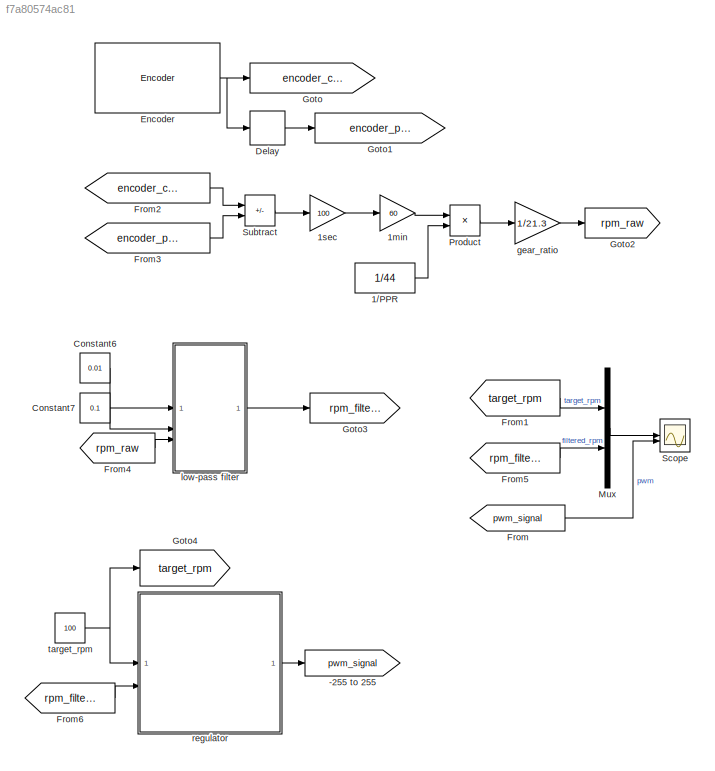
MODEL slx_f7a80574ac81
KIND model
CONFIG AbsTol = auto
CONFIG EnableMultiTasking = on
CONFIG FixedStep = 0.01
CONFIG MaxStep = auto
CONFIG MinStep = auto
CONFIG RelTol = 1e-3
CONFIG SampleTimeConstraint = Unconstrained
CONFIG SolverName = FixedStepDiscrete
CONFIG StartTime = 0.0
CONFIG StopTime = inf
BLOCK [Goto] -255 to 255
  GotoTag = pwm_signal
BLOCK [Constant] 1//PPR
  Value = 1/44
BLOCK [Gain] 1min
  Gain = 60
BLOCK [Gain] 1sec
  Gain = 100
BLOCK [Constant] Constant6
  Value = 0.01
BLOCK [Constant] Constant7
  Value = 0.1
BLOCK [Delay] Delay
  DelayLength = 1
  InputPortMap = u0
BLOCK [Reference] Encoder  REF=arduinosensorlib/Encoder
  SourceBlock = arduinosensorlib/Encoder
  SourceType = Arduino Rotary Encoder
BLOCK [From] From
  GotoTag = pwm_signal
BLOCK [From] From1
  GotoTag = target_rpm
BLOCK [From] From2
  GotoTag = encoder_current
BLOCK [From] From3
  GotoTag = encoder_previous
BLOCK [From] From4
  GotoTag = rpm_raw
BLOCK [From] From5
  GotoTag = rpm_filtered
BLOCK [From] From6
  GotoTag = rpm_filtered
BLOCK [Goto] Goto
  GotoTag = encoder_current
BLOCK [Goto] Goto1
  GotoTag = encoder_previous
BLOCK [Goto] Goto2
  GotoTag = rpm_raw
BLOCK [Goto] Goto3
  GotoTag = rpm_filtered
BLOCK [Goto] Goto4
  GotoTag = target_rpm
BLOCK [Mux] Mux
  DisplayOption = bar
  Inputs = 2
BLOCK [Product] Product
BLOCK [Scope] Scope
  Floating = off
  NumInputPorts = 2
  ScopeSpecificationString = Simulink.scopes.TimeScopeBlockCfg('CurrentConfiguration', extmgr.ConfigurationSet(extmgr.Configuration('Core','General UI',true),extmgr.Configuration('Core','Source UI',true),extmgr.Configuration('Sources','WiredSimulink',true),extmgr.Configuration('Visuals','Time Domain',true,'SerializedDisplays',{struct('MinYLimReal','-300','MaxYLimReal','300','YLabelReal','','MinYLimMag',' 0.00000','MaxYLimMag'...<+1962ch>
BLOCK [Sum] Subtract
  IconShape = rectangular
  Inputs = +-
BLOCK [Gain] gear_ratio
  Gain = 1/21.3
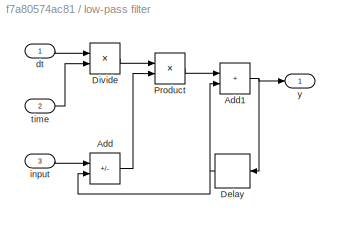
BLOCK [SubSystem] low-pass filter
BLOCK [Sum] low-pass filter/Add
  IconShape = rectangular
  Inputs = +-
BLOCK [Sum] low-pass filter/Add1
  IconShape = rectangular
BLOCK [Delay] low-pass filter/Delay
  DelayLength = 1
  InputPortMap = u0
BLOCK [Product] low-pass filter/Divide
  Inputs = */
BLOCK [Product] low-pass filter/Product
BLOCK [Inport] low-pass filter/dt
BLOCK [Inport] low-pass filter/input
  Port = 3
BLOCK [Inport] low-pass filter/time
  Port = 2
BLOCK [Outport] low-pass filter/y
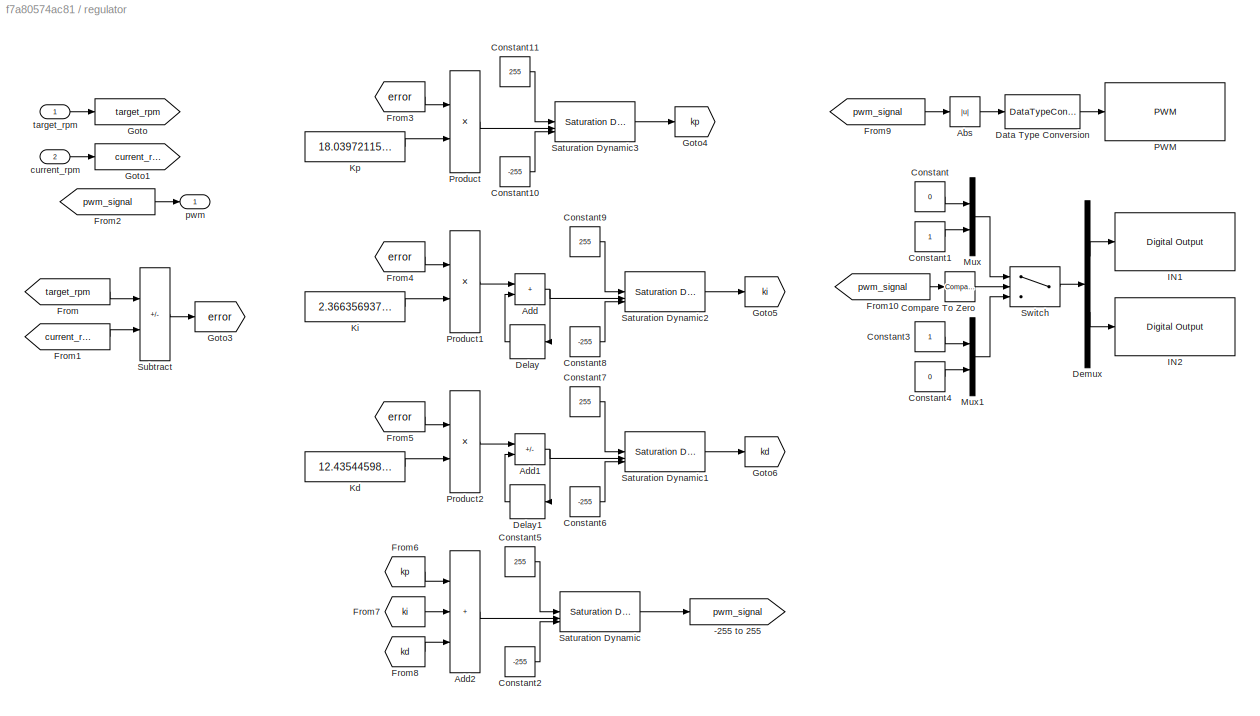
BLOCK [SubSystem] regulator
BLOCK [Goto] regulator/-255 to 255
  GotoTag = pwm_signal
BLOCK [Abs] regulator/Abs
  SaturateOnIntegerOverflow = off
BLOCK [Sum] regulator/Add
  IconShape = rectangular
BLOCK [Sum] regulator/Add1
  IconShape = rectangular
  Inputs = +-
BLOCK [Sum] regulator/Add2
  IconShape = rectangular
  Inputs = +++
BLOCK [Reference] regulator/Compare To Zero  REF=simulink/Logic and Bit
Operations/Compare
To Zero
  SourceBlock = simulink/Logic and Bit\nOperations/Compare\nTo Zero
  SourceType = Compare To Zero
BLOCK [Constant] regulator/Constant
  OutDataTypeStr = uint8
  OutMax = 1
  OutMin = 0
  Value = 0
BLOCK [Constant] regulator/Constant1
  OutDataTypeStr = uint8
  OutMax = 1
  OutMin = 0
BLOCK [Constant] regulator/Constant10
  Value = -255
BLOCK [Constant] regulator/Constant11
  Value = 255
BLOCK [Constant] regulator/Constant2
  Value = -255
BLOCK [Constant] regulator/Constant3
  OutDataTypeStr = uint8
  OutMax = 1
  OutMin = 0
BLOCK [Constant] regulator/Constant4
  OutDataTypeStr = uint8
  OutMax = 1
  OutMin = 0
  Value = 0
BLOCK [Constant] regulator/Constant5
  Value = 255
BLOCK [Constant] regulator/Constant6
  Value = -255
BLOCK [Constant] regulator/Constant7
  Value = 255
BLOCK [Constant] regulator/Constant8
  Value = -255
BLOCK [Constant] regulator/Constant9
  Value = 255
BLOCK [DataTypeConversion] regulator/Data Type Conversion
  OutDataTypeStr = uint8
  RndMeth = Floor
  SaturateOnIntegerOverflow = off
BLOCK [Delay] regulator/Delay
  DelayLength = 1
  InputPortMap = u0
  NameLocation = top
BLOCK [Delay] regulator/Delay1
  DelayLength = 1
  InputPortMap = u0
  NameLocation = top
BLOCK [Demux] regulator/Demux
  Outputs = 2
BLOCK [From] regulator/From
  GotoTag = target_rpm
BLOCK [From] regulator/From1
  GotoTag = current_rpm
BLOCK [From] regulator/From10
  GotoTag = pwm_signal
BLOCK [From] regulator/From2
  GotoTag = pwm_signal
BLOCK [From] regulator/From3
  GotoTag = error
BLOCK [From] regulator/From4
  GotoTag = error
BLOCK [From] regulator/From5
  GotoTag = error
BLOCK [From] regulator/From6
  GotoTag = kp
BLOCK [From] regulator/From7
  GotoTag = ki
BLOCK [From] regulator/From8
  GotoTag = kd
BLOCK [From] regulator/From9
  GotoTag = pwm_signal
BLOCK [Goto] regulator/Goto
  GotoTag = target_rpm
BLOCK [Goto] regulator/Goto1
  GotoTag = current_rpm
BLOCK [Goto] regulator/Goto3
  GotoTag = error
BLOCK [Goto] regulator/Goto4
  GotoTag = kp
BLOCK [Goto] regulator/Goto5
  GotoTag = ki
BLOCK [Goto] regulator/Goto6
  GotoTag = kd
BLOCK [Reference] regulator/IN1  REF=arduinolib/Digital Output
  SourceBlock = arduinolib/Digital Output
  SourceType = Arduino Digital Output
BLOCK [Reference] regulator/IN2  REF=arduinolib/Digital Output
  SourceBlock = arduinolib/Digital Output
  SourceType = Arduino Digital Output
BLOCK [Constant] regulator/Kd
  Value = 12.4354459869947
BLOCK [Constant] regulator/Ki
  Value = 2.36635693787993
BLOCK [Constant] regulator/Kp
  Value = 18.0397211502912
BLOCK [Mux] regulator/Mux
  DisplayOption = bar
  Inputs = 2
BLOCK [Mux] regulator/Mux1
  DisplayOption = bar
  Inputs = 2
BLOCK [Reference] regulator/PWM  REF=arduinolib/PWM
  SourceBlock = arduinolib/PWM
  SourceType = Arduino PWM
BLOCK [Product] regulator/Product
BLOCK [Product] regulator/Product1
BLOCK [Product] regulator/Product2
BLOCK [Reference] regulator/Saturation Dynamic  REF=simulink/Discontinuities/Saturation
Dynamic
  SourceBlock = simulink/Discontinuities/Saturation\nDynamic
  SourceType = Saturation Dynamic
BLOCK [Reference] regulator/Saturation Dynamic1  REF=simulink/Discontinuities/Saturation
Dynamic
  SourceBlock = simulink/Discontinuities/Saturation\nDynamic
  SourceType = Saturation Dynamic
BLOCK [Reference] regulator/Saturation Dynamic2  REF=simulink/Discontinuities/Saturation
Dynamic
  SourceBlock = simulink/Discontinuities/Saturation\nDynamic
  SourceType = Saturation Dynamic
BLOCK [Reference] regulator/Saturation Dynamic3  REF=simulink/Discontinuities/Saturation
Dynamic
  SourceBlock = simulink/Discontinuities/Saturation\nDynamic
  SourceType = Saturation Dynamic
BLOCK [Sum] regulator/Subtract
  IconShape = rectangular
  Inputs = +-
BLOCK [Switch] regulator/Switch
  Criteria = u2 ~= 0
  InputSameDT = off
  SaturateOnIntegerOverflow = off
BLOCK [Inport] regulator/current_rpm
  Port = 2
BLOCK [Outport] regulator/pwm
BLOCK [Inport] regulator/target_rpm
BLOCK [Constant] target_rpm
  Value = 100
LINE 1//PPR:1 -> Product:2
LINE 1min:1 -> Product:1
LINE 1sec:1 -> 1min:1
LINE Constant6:1 -> low-pass filter:1
LINE Constant7:1 -> low-pass filter:2
LINE Delay:1 -> Goto1:1
NET Encoder:1 -> Delay:1, Goto:1
LINE From1:1 -> Mux:1
LINE From2:1 -> Subtract:1
LINE From3:1 -> Subtract:2
LINE From4:1 -> low-pass filter:3
LINE From5:1 -> Mux:2
LINE From6:1 -> regulator:2
LINE From:1 -> Scope:2
LINE Mux:1 -> Scope:1
LINE Product:1 -> gear_ratio:1
LINE Subtract:1 -> 1sec:1
LINE gear_ratio:1 -> Goto2:1
NET low-pass filter/Add1:1 -> low-pass filter/Delay:1, low-pass filter/y:1
LINE low-pass filter/Add:1 -> low-pass filter/Product:2
NET low-pass filter/Delay:1 -> low-pass filter/Add1:2, low-pass filter/Add:2
LINE low-pass filter/Divide:1 -> low-pass filter/Product:1
LINE low-pass filter/Product:1 -> low-pass filter/Add1:1
LINE low-pass filter/dt:1 -> low-pass filter/Divide:1
LINE low-pass filter/input:1 -> low-pass filter/Add:1
LINE low-pass filter/time:1 -> low-pass filter/Divide:2
LINE low-pass filter:1 -> Goto3:1
LINE regulator/Abs:1 -> regulator/Data Type Conversion:1
NET regulator/Add1:1 -> regulator/Delay1:1, regulator/Saturation Dynamic1:2
LINE regulator/Add2:1 -> regulator/Saturation Dynamic:2
NET regulator/Add:1 -> regulator/Delay:1, regulator/Saturation Dynamic2:2
LINE regulator/Compare To Zero:1 -> regulator/Switch:2
LINE regulator/Constant10:1 -> regulator/Saturation Dynamic3:3
LINE regulator/Constant11:1 -> regulator/Saturation Dynamic3:1
LINE regulator/Constant1:1 -> regulator/Mux:2
LINE regulator/Constant2:1 -> regulator/Saturation Dynamic:3
LINE regulator/Constant3:1 -> regulator/Mux1:1
LINE regulator/Constant4:1 -> regulator/Mux1:2
LINE regulator/Constant5:1 -> regulator/Saturation Dynamic:1
LINE regulator/Constant6:1 -> regulator/Saturation Dynamic1:3
LINE regulator/Constant7:1 -> regulator/Saturation Dynamic1:1
LINE regulator/Constant8:1 -> regulator/Saturation Dynamic2:3
LINE regulator/Constant9:1 -> regulator/Saturation Dynamic2:1
LINE regulator/Constant:1 -> regulator/Mux:1
LINE regulator/Data Type Conversion:1 -> regulator/PWM:1
LINE regulator/Delay1:1 -> regulator/Add1:2
LINE regulator/Delay:1 -> regulator/Add:2
LINE regulator/Demux:1 -> regulator/IN1:1
LINE regulator/Demux:2 -> regulator/IN2:1
LINE regulator/From10:1 -> regulator/Compare To Zero:1
LINE regulator/From1:1 -> regulator/Subtract:2
LINE regulator/From2:1 -> regulator/pwm:1
LINE regulator/From3:1 -> regulator/Product:1
LINE regulator/From4:1 -> regulator/Product1:1
LINE regulator/From5:1 -> regulator/Product2:1
LINE regulator/From6:1 -> regulator/Add2:1
LINE regulator/From7:1 -> regulator/Add2:2
LINE regulator/From8:1 -> regulator/Add2:3
LINE regulator/From9:1 -> regulator/Abs:1
LINE regulator/From:1 -> regulator/Subtract:1
LINE regulator/Kd:1 -> regulator/Product2:2
LINE regulator/Ki:1 -> regulator/Product1:2
LINE regulator/Kp:1 -> regulator/Product:2
LINE regulator/Mux1:1 -> regulator/Switch:3
LINE regulator/Mux:1 -> regulator/Switch:1
LINE regulator/Product1:1 -> regulator/Add:1
LINE regulator/Product2:1 -> regulator/Add1:1
LINE regulator/Product:1 -> regulator/Saturation Dynamic3:2
LINE regulator/Saturation Dynamic1:1 -> regulator/Goto6:1
LINE regulator/Saturation Dynamic2:1 -> regulator/Goto5:1
LINE regulator/Saturation Dynamic3:1 -> regulator/Goto4:1
LINE regulator/Saturation Dynamic:1 -> regulator/-255 to 255:1
LINE regulator/Subtract:1 -> regulator/Goto3:1
LINE regulator/Switch:1 -> regulator/Demux:1
LINE regulator/current_rpm:1 -> regulator/Goto1:1
LINE regulator/target_rpm:1 -> regulator/Goto:1
LINE regulator:1 -> -255 to 255:1
NET target_rpm:1 -> Goto4:1, regulator:1
note: NET lines group one-source signal fan-out (src -> all destinations, sorted); 1:1 wires keep LINE
